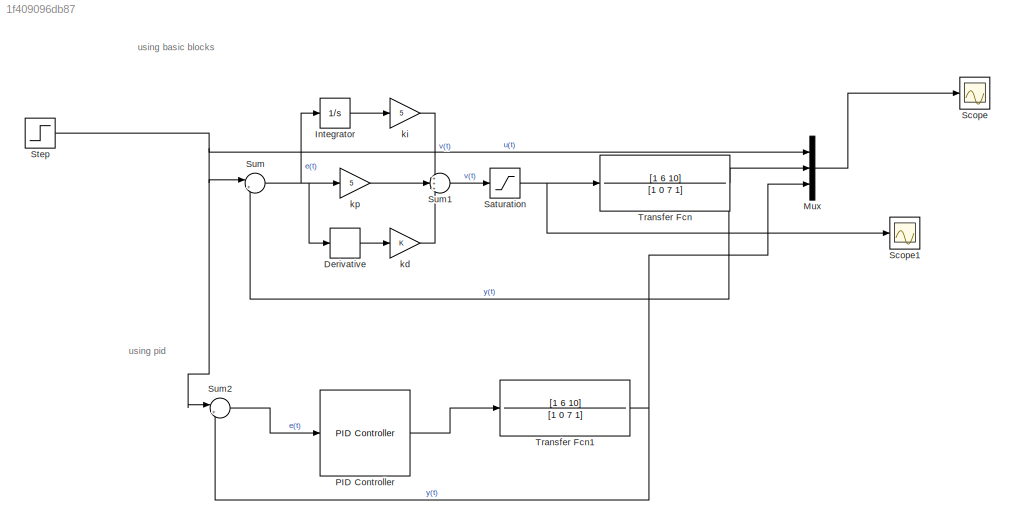
MODEL slx_1f409096db87
KIND model
CONFIG AbsTol = auto
CONFIG EnableMultiTasking = off
CONFIG FixedStep = auto
CONFIG MaxStep = auto
CONFIG MinStep = auto
CONFIG RelTol = 1e-3
CONFIG SampleTimeConstraint = Unconstrained
CONFIG SolverName = VariableStepAuto
CONFIG StartTime = 0.0
CONFIG StopTime = 10.0
BLOCK [Derivative] Derivative
BLOCK [Integrator] Integrator
BLOCK [Mux] Mux
  DisplayOption = bar
  Inputs = 3
BLOCK [Reference] PID Controller  REF=slpidlib/PID Controller
  LibrarySourceBlock = simulink/Continuous/PID Controller
  SourceBlock = slpidlib/PID Controller
  SourceType = PID 1dof
BLOCK [Saturate] Saturation
  LowerLimit = -2
  UpperLimit = 2
BLOCK [Scope] Scope
  Floating = off
  NumInputPorts = 1
  ScopeSpecificationString = Simulink.scopes.TimeScopeBlockCfg('CurrentConfiguration', extmgr.ConfigurationSet(extmgr.Configuration('Core','General UI',true),extmgr.Configuration('Core','Source UI',true),extmgr.Configuration('Sources','WiredSimulink',true),extmgr.Configuration('Visuals','Time Domain',true,'SerializedDisplays',{struct('MinYLimReal','0.86348','MaxYLimReal','1.18648','YLabelReal','','MinYLimMag','0.86348','MaxYL...<+1513ch>
BLOCK [Scope] Scope1
  Floating = off
  NumInputPorts = 1
  ScopeSpecificationString = Simulink.scopes.TimeScopeBlockCfg('CurrentConfiguration', extmgr.ConfigurationSet(extmgr.Configuration('Core','General UI',true),extmgr.Configuration('Core','Source UI',true),extmgr.Configuration('Sources','WiredSimulink',true,'DataLoggingVariableName','ScopeData1'),extmgr.Configuration('Visuals','Time Domain',true,'SerializedDisplays',{struct('MinYLimReal','-0.47601','MaxYLimReal','2.27511','YLab...<+1500ch>
BLOCK [Step] Step
  SampleTime = 0
BLOCK [Sum] Sum
  Inputs = |+-
BLOCK [Sum] Sum1
  Inputs = +++
BLOCK [Sum] Sum2
  Inputs = |+-
BLOCK [TransferFcn] Transfer Fcn
  Denominator = [1 0 7 1]
  Numerator = [1 6 10]
BLOCK [TransferFcn] Transfer Fcn1
  Denominator = [1 0 7 1]
  Numerator = [1 6 10]
BLOCK [Gain] kd
BLOCK [Gain] ki
  Gain = 5
BLOCK [Gain] kp
  Gain = 5
ANNOTATION (root): using basic blocks
ANNOTATION (root): using pid
LINE Derivative:1 -> kd:1
LINE Integrator:1 -> ki:1
LINE Mux:1 -> Scope:1
LINE PID Controller:1 -> Transfer Fcn1:1
NET Saturation:1 -> Scope1:1, Transfer Fcn:1
NET Step:1 -> Mux:1, Sum2:1, Sum:1
LINE Sum1:1 -> Saturation:1
LINE Sum2:1 -> PID Controller:1
NET Sum:1 -> Derivative:1, Integrator:1, kp:1
NET Transfer Fcn1:1 -> Mux:3, Sum2:2
NET Transfer Fcn:1 -> Mux:2, Sum:2
LINE kd:1 -> Sum1:3
LINE ki:1 -> Sum1:1
LINE kp:1 -> Sum1:2
note: NET lines group one-source signal fan-out (src -> all destinations, sorted); 1:1 wires keep LINE
